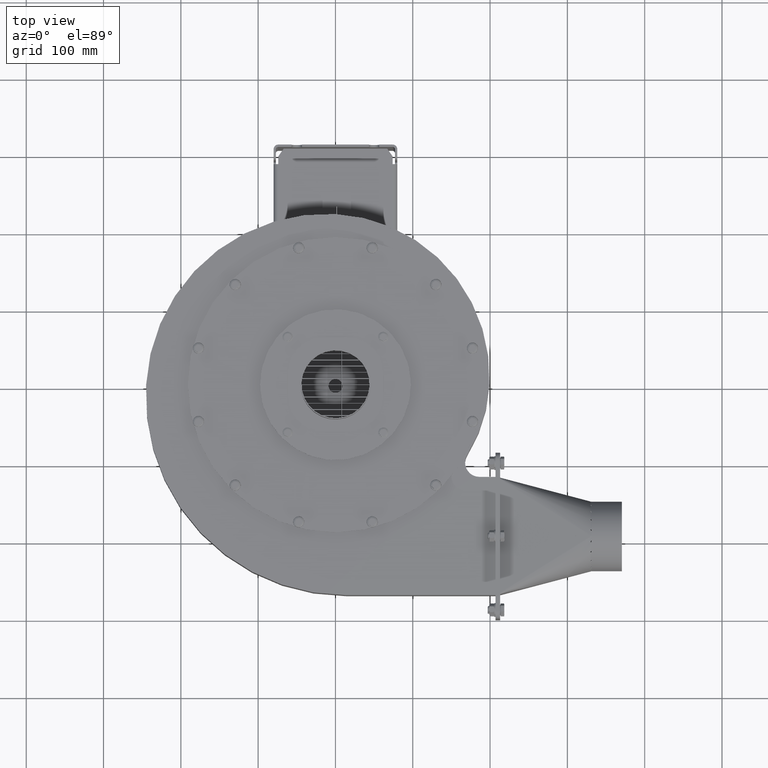
[diagram: clean part render]
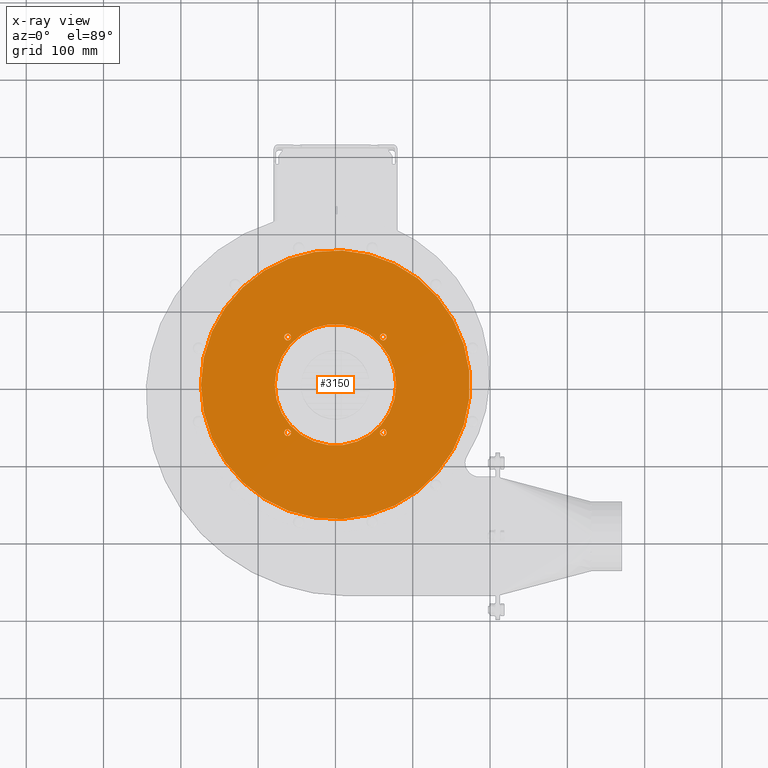
[diagram: x-ray — body ghosted, one internal face saturated and labeled with its STEP entity id]
A machine part, top view, then the same camera in x-ray: the body is ghosted and one INTERNAL B-rep face — a face not visible from any outside direction — is saturated and labeled: STEP entity #3150.
In plain terms, the highlighted planar face has unit normal (-0, 0, -1).
Its self-contained STEP definition (entity closure, byte-faithful):
#3150 = ADVANCED_FACE( 'NONE', ( #7664, #7665, #7666, #7667, #7668, #7669 ), #7670, .T. );
#7664 = FACE_OUTER_BOUND( '', #14094, .T. );
#7665 = FACE_BOUND( '', #14095, .T. );
#7666 = FACE_BOUND( '', #14096, .T. );
#7667 = FACE_BOUND( '', #14097, .T. );
#7668 = FACE_BOUND( '', #14098, .T. );
#7669 = FACE_BOUND( '', #14099, .T. );
#7670 = PLANE( '', #14100 );
#14094 = EDGE_LOOP( '', ( #23636 ) );
#14095 = EDGE_LOOP( '', ( #23637 ) );
#14096 = EDGE_LOOP( '', ( #23638 ) );
#14097 = EDGE_LOOP( '', ( #23639 ) );
#14098 = EDGE_LOOP( '', ( #23640 ) );
#14099 = EDGE_LOOP( '', ( #23641 ) );
#14100 = AXIS2_PLACEMENT_3D( '', #23642, #23643, #23644 );
#23636 = ORIENTED_EDGE( '', *, *, #37408, .T. );
#23637 = ORIENTED_EDGE( '', *, *, #37409, .T. );
#23638 = ORIENTED_EDGE( '', *, *, #37410, .T. );
#23639 = ORIENTED_EDGE( '', *, *, #37411, .T. );
#23640 = ORIENTED_EDGE( '', *, *, #37412, .T. );
#23641 = ORIENTED_EDGE( '', *, *, #37413, .T. );
#23642 = CARTESIAN_POINT( '', ( 1.25419053555031E-014, -4.71709637122901E-026, -6.93889390390723E-014 ) );
#23643 = DIRECTION( '', ( -1.26942718391007E-016, 6.61686469463040E-029, -1.00000000000000 ) );
#23644 = DIRECTION( '', ( -1.00000000000000, 0.000000000000000, 1.26942718391007E-016 ) );
#37408 = EDGE_CURVE( 'NONE', #45300, #45300, #45301, .T. );
#37409 = EDGE_CURVE( 'NONE', #45302, #45302, #45303, .T. );
#37410 = EDGE_CURVE( 'NONE', #45304, #45304, #45305, .T. );
#37411 = EDGE_CURVE( 'NONE', #45306, #45306, #45307, .T. );
#37412 = EDGE_CURVE( 'NONE', #45308, #45308, #45309, .T. );
#37413 = EDGE_CURVE( 'NONE', #45310, #45310, #45311, .T. );
#45300 = VERTEX_POINT( '', #56753 );
#45301 = CIRCLE( '', #56754, 174.000000000000 );
#45302 = VERTEX_POINT( '', #56755 );
#45303 = CIRCLE( '', #56756, 78.5000000000000 );
#45304 = VERTEX_POINT( '', #56757 );
#45305 = CIRCLE( '', #56758, 4.37500000000000 );
#45306 = VERTEX_POINT( '', #56759 );
#45307 = CIRCLE( '', #56760, 4.37500000000000 );
#45308 = VERTEX_POINT( '', #56761 );
#45309 = CIRCLE( '', #56762, 4.37500000000000 );
#45310 = VERTEX_POINT( '', #56763 );
#45311 = CIRCLE( '', #56764, 4.37500000000000 );
#56753 = CARTESIAN_POINT( '', ( -174.000000000000, -4.14161738249706E-027, 8.37967800315070E-017 ) );
#56754 = AXIS2_PLACEMENT_3D( '', #68127, #68128, #68129 );
#56755 = CARTESIAN_POINT( '', ( -78.5000000000000, -4.73035811139561E-026, -5.98576165143724E-014 ) );
#56756 = AXIS2_PLACEMENT_3D( '', #68130, #68131, #68132 );
#56757 = CARTESIAN_POINT( '', ( 57.4968433538230, -61.8718433538228, -7.92419055019724E-014 ) );
#56758 = AXIS2_PLACEMENT_3D( '', #68133, #68134, #68135 );
#56759 = CARTESIAN_POINT( '', ( -66.2468433538228, -61.8718433538230, -5.94142790522057E-014 ) );
#56760 = AXIS2_PLACEMENT_3D( '', #68136, #68137, #68138 );
#56761 = CARTESIAN_POINT( '', ( -66.2468433538230, 61.8718433538228, -5.92925855282392E-014 ) );
#56762 = AXIS2_PLACEMENT_3D( '', #68139, #68140, #68141 );
#56763 = CARTESIAN_POINT( '', ( 57.4968433538228, 61.8718433538230, -7.93635990259389E-014 ) );
#56764 = AXIS2_PLACEMENT_3D( '', #68142, #68143, #68144 );
#68127 = CARTESIAN_POINT( '', ( 2.29348205414529E-014, -4.14161738249706E-027, -4.73847028190687E-014 ) );
#68128 = DIRECTION( '', ( -2.72807468960346E-016, 5.17702172812132E-029, -1.00000000000000 ) );
#68129 = DIRECTION( '', ( -1.00000000000000, 0.000000000000000, 2.72807468960346E-016 ) );
#68130 = CARTESIAN_POINT( '', ( 1.25419053555031E-014, -4.73035811139561E-026, -6.98226199080665E-014 ) );
#68131 = DIRECTION( '', ( 1.26942718391007E-016, 1.40053886711417E-031, 1.00000000000000 ) );
#68132 = DIRECTION( '', ( -1.00000000000000, 0.000000000000000, 1.26942718391007E-016 ) );
#68133 = CARTESIAN_POINT( '', ( 61.8718433538230, -61.8718433538228, -7.97972798949331E-014 ) );
#68134 = DIRECTION( '', ( 1.26942718391008E-016, 2.01335326808862E-031, 1.00000000000000 ) );
#68135 = DIRECTION( '', ( -1.00000000000000, 0.000000000000000, 1.26942718391008E-016 ) );
#68136 = CARTESIAN_POINT( '', ( -61.8718433538228, -61.8718433538230, -5.98479599211999E-014 ) );
#68137 = DIRECTION( '', ( 9.91270557701032E-017, -6.62127635021425E-029, 1.00000000000000 ) );
#68138 = DIRECTION( '', ( -1.00000000000000, 0.000000000000000, 9.91270557701032E-017 ) );
#68139 = CARTESIAN_POINT( '', ( -61.8718433538230, 61.8718433538228, -5.98479599211999E-014 ) );
#68140 = DIRECTION( '', ( 1.26942718391008E-016, 2.01335326808862E-031, 1.00000000000000 ) );
#68141 = DIRECTION( '', ( -1.00000000000000, 0.000000000000000, 1.26942718391008E-016 ) );
#68142 = CARTESIAN_POINT( '', ( 61.8718433538228, 61.8718433538230, -7.97972798949331E-014 ) );
#68143 = DIRECTION( '', ( 9.91270557701032E-017, -6.62127635021425E-029, 1.00000000000000 ) );
#68144 = DIRECTION( '', ( -1.00000000000000, 0.000000000000000, 9.91270557701032E-017 ) );